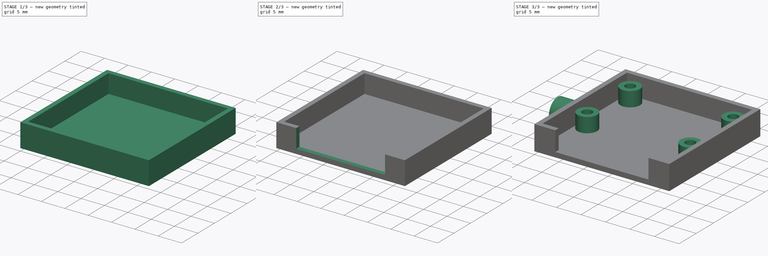
[diagram: build sequence overview — one tinted view per stage of 3, left to right]
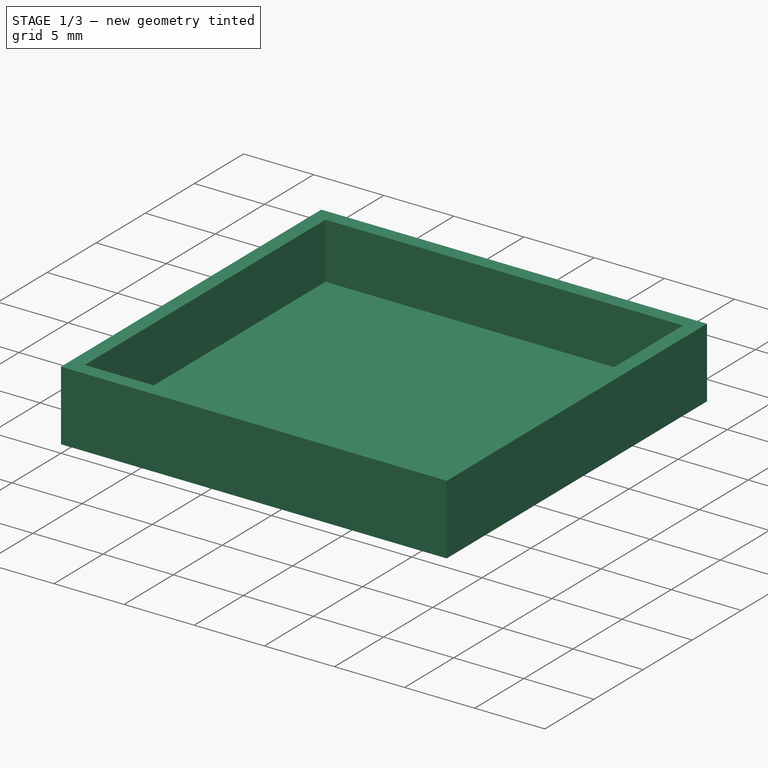
[diagram: stage 1 of 3 — iso view after this stage's code; geometry added in this stage tinted green]
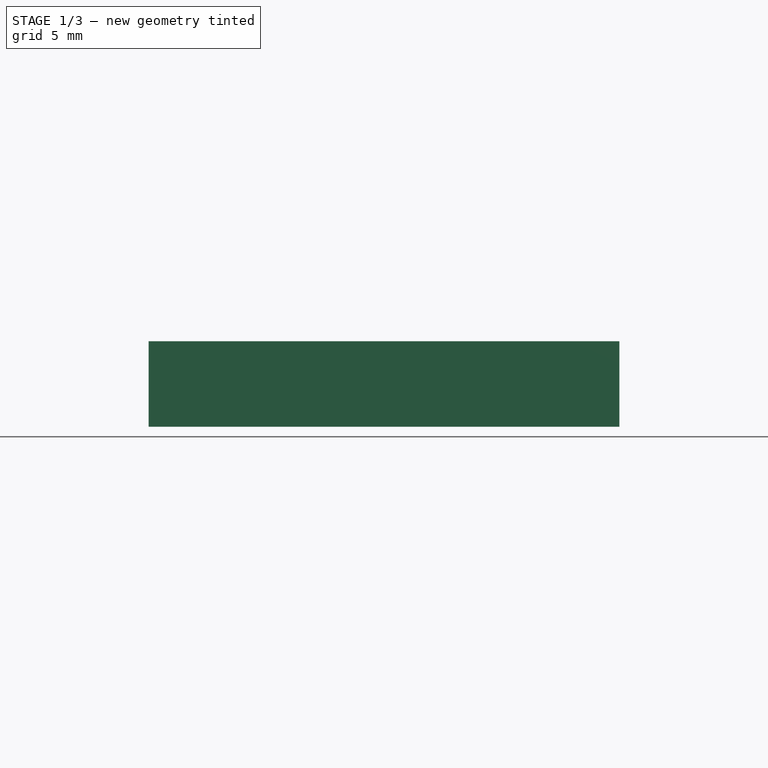
[diagram: stage 1 of 3 — front view after this stage's code; geometry added in this stage tinted green]
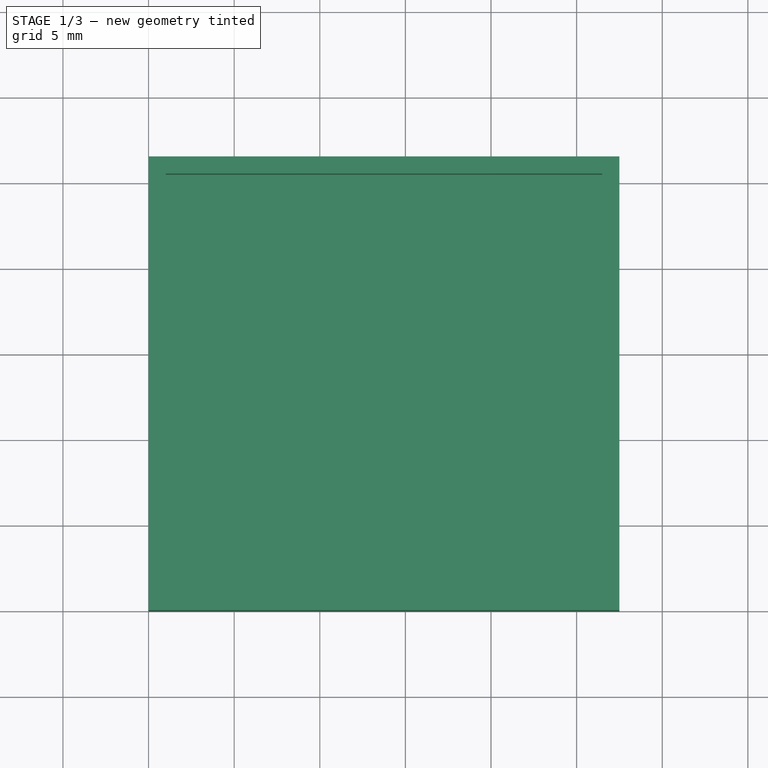
[diagram: stage 1 of 3 — top view after this stage's code; geometry added in this stage tinted green]
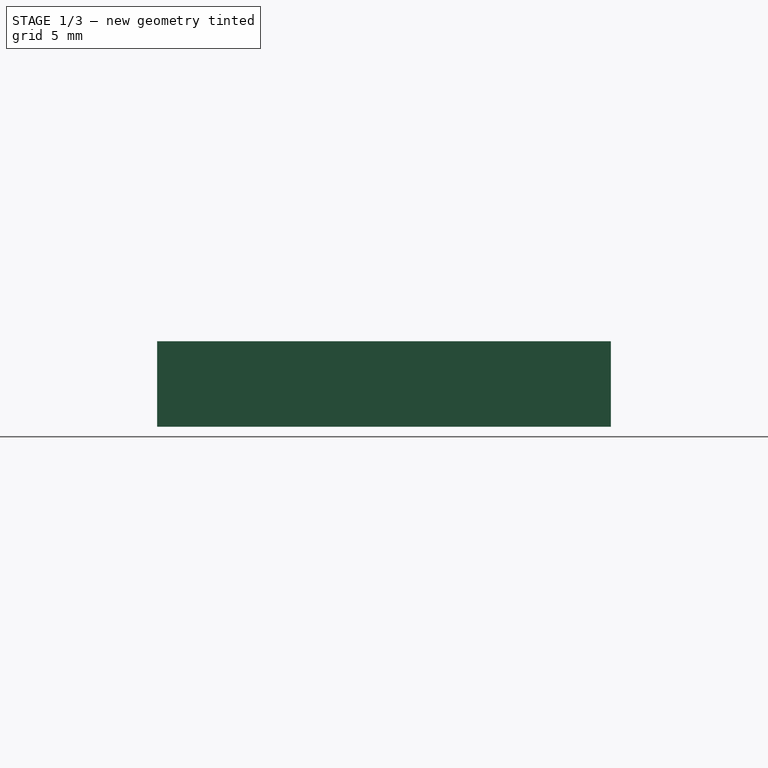
[diagram: stage 1 of 3 — right view after this stage's code; geometry added in this stage tinted green]
FCSTD DOCUMENT  (FreeCAD 0.16R6109 (Git))
Label: PiCamBack
License: All rights reserved
LicenseURL: http://en.wikipedia.org/wiki/All_rights_reserved
objects: Sketcher::SketchObject×5, PartDesign::Pad×3, PartDesign::Pocket×2
note: 15 computed .brp shape members not serialized (recipe doc carries the construction recipe); baked Part::Feature solids carry a one-line shape summary decoded from their .brp

FEATURE [Sketcher::SketchObject] Sketch
  sketch-geometry (4):
    g0: LineSegment StartX=0 StartY=0 StartZ=0 EndX=27.5 EndY=0 EndZ=0
    g1: LineSegment StartX=27.5 StartY=0 StartZ=0 EndX=27.5 EndY=26.5 EndZ=0
    g2: LineSegment StartX=27.5 StartY=26.5 StartZ=0 EndX=0 EndY=26.5 EndZ=0
    g3: LineSegment StartX=0 StartY=26.5 StartZ=0 EndX=0 EndY=0 EndZ=0
  constraints (11):
    c: Coincident(g0,g1)
    c: Coincident(g1,g2)
    c: Coincident(g2,g3)
    c: Coincident(g3,g0)
    c: Horizontal(g0)
    c: Horizontal(g2)
    c: Vertical(g1)
    c: Vertical(g3)
    c: Coincident(g0,g-1)
    c: Distance(g2) = 27.5
    c: Distance(g1) = 26.5
FEATURE [PartDesign::Pad] Pad  label="Outside"
  Length = 5
  Length2 = 100
  Sketch = -> Sketch
  Type = 0
FEATURE [Sketcher::SketchObject] Sketch001
  ExternalGeometry = -> [Pad]
  Placement = pos=(0,0,5) rot=(0,0,1;0rad)
  Support = -> Pad [Face6]
  sketch-geometry (4):
    g0: LineSegment StartX=1 StartY=25.5 StartZ=0 EndX=26.5 EndY=25.5 EndZ=0
    g1: LineSegment StartX=26.5 StartY=25.5 StartZ=0 EndX=26.5 EndY=1 EndZ=0
    g2: LineSegment StartX=26.5 StartY=1 StartZ=0 EndX=1 EndY=1 EndZ=0
    g3: LineSegment StartX=1 StartY=1 StartZ=0 EndX=1 EndY=25.5 EndZ=0
  constraints (12):
    c: Coincident(g0,g1)
    c: Coincident(g1,g2)
    c: Coincident(g2,g3)
    c: Coincident(g3,g0)
    c: Horizontal(g0)
    c: Horizontal(g2)
    c: Vertical(g1)
    c: Vertical(g3)
    c: DistanceX(g-1,g2) = 1
    c: DistanceY(g-1,g2) = 1
    c: DistanceY(g0,g-3) = 1
    c: DistanceX(g0,g-3) = 1
FEATURE [PartDesign::Pocket] Pocket  label="Inside"
  Length = 4
  Sketch = -> Sketch001
  Type = 0
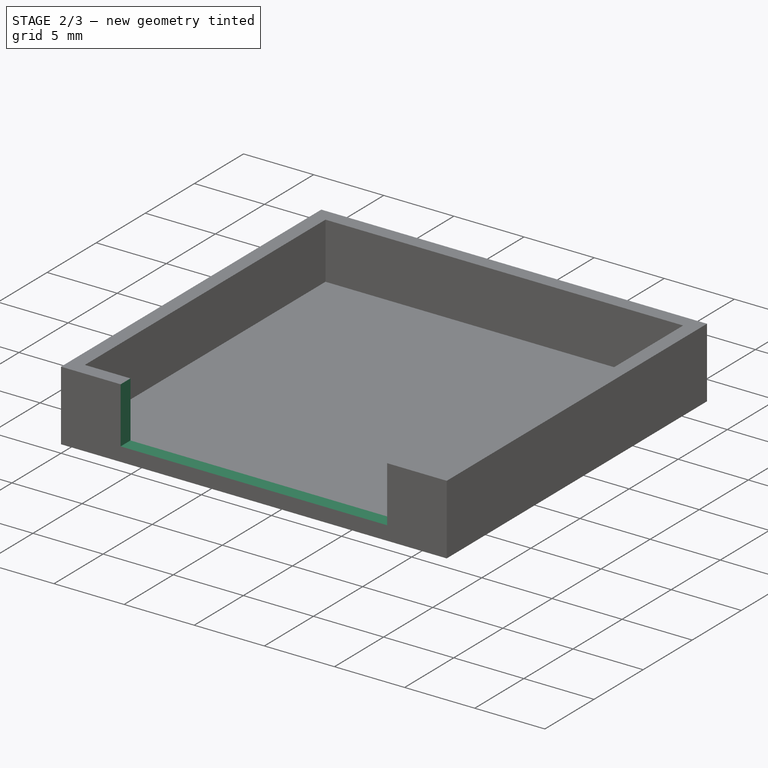
[diagram: stage 2 of 3 — iso view after this stage's code; geometry added in this stage tinted green]
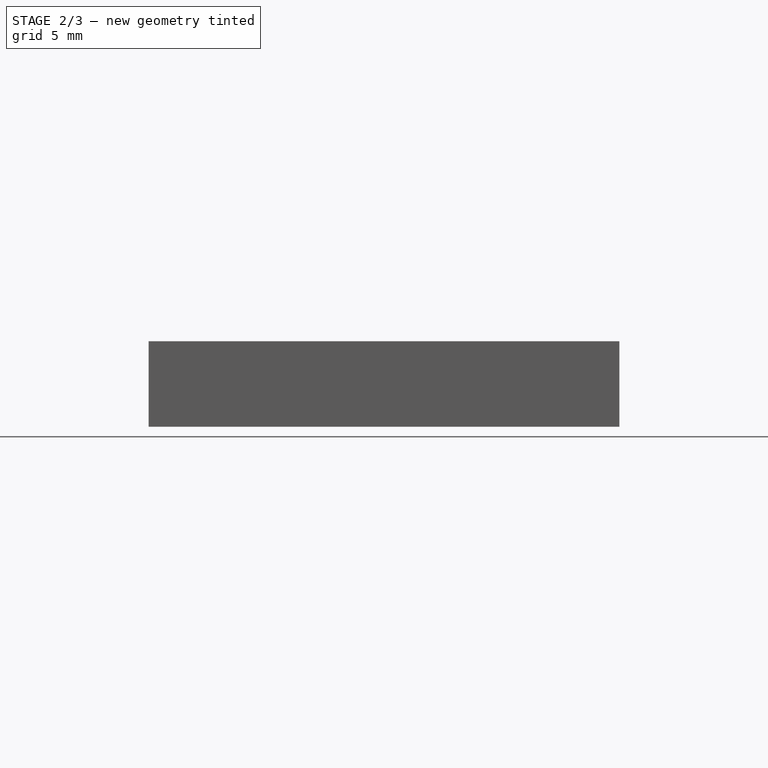
[diagram: stage 2 of 3 — front view after this stage's code; geometry added in this stage tinted green]
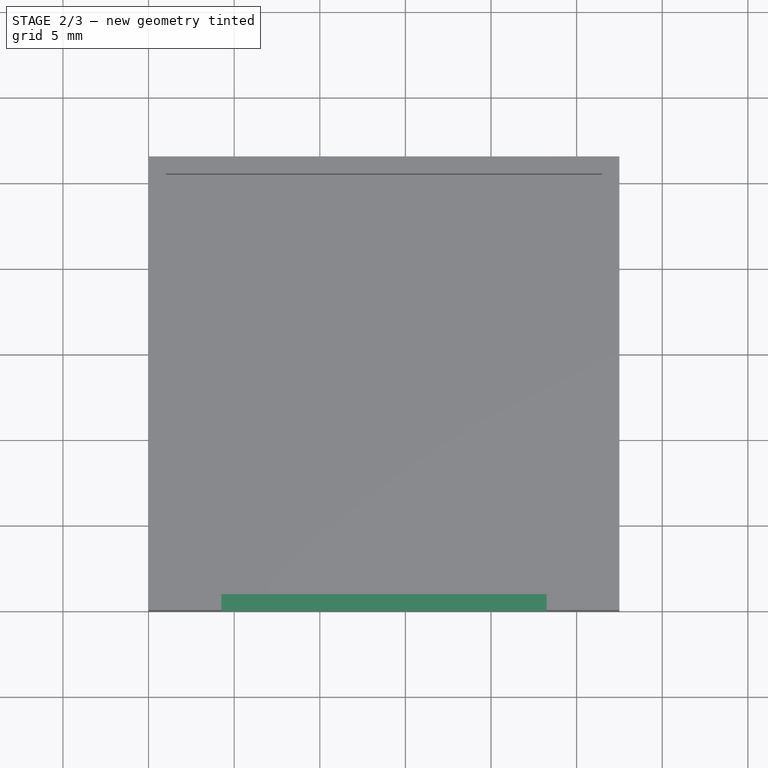
[diagram: stage 2 of 3 — top view after this stage's code; geometry added in this stage tinted green]
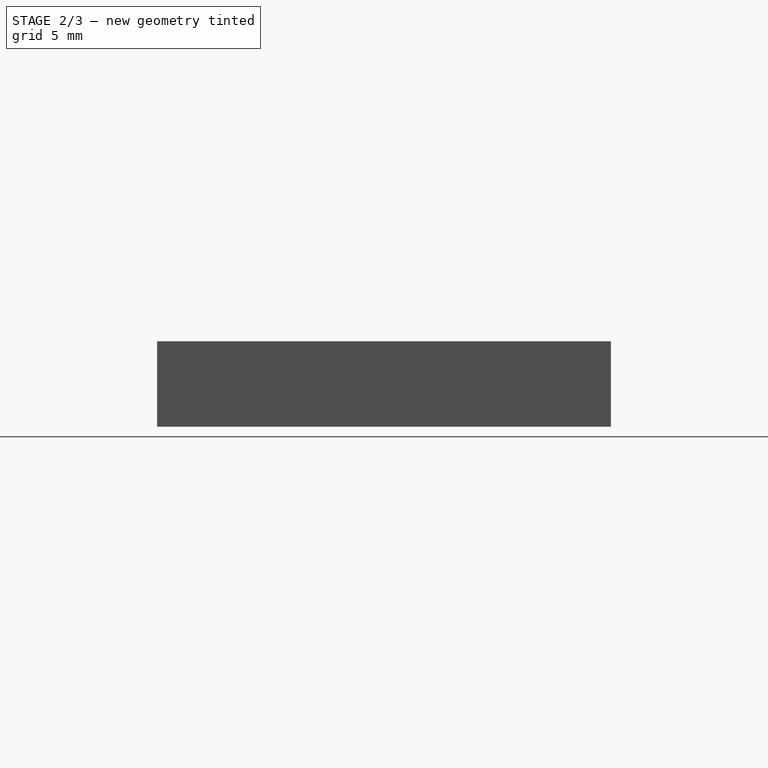
[diagram: stage 2 of 3 — right view after this stage's code; geometry added in this stage tinted green]
FEATURE [Sketcher::SketchObject] Sketch002
  ExternalGeometry = -> [Pocket]
  Placement = pos=(0,0,0) rot=(1,0,0;1.5708rad)
  Support = -> Pocket [Face1]
  sketch-geometry (5):
    g0: LineSegment [constr] StartX=13.75 StartY=7.29413 StartZ=0 EndX=13.75 EndY=-3.26497 EndZ=0
    g1: LineSegment StartX=4.25 StartY=5 StartZ=0 EndX=23.25 EndY=5 EndZ=0
    g2: LineSegment StartX=23.25 StartY=5 StartZ=0 EndX=23.25 EndY=1 EndZ=0
    g3: LineSegment StartX=23.25 StartY=1 StartZ=0 EndX=4.25 EndY=1 EndZ=0
    g4: LineSegment StartX=4.25 StartY=1 StartZ=0 EndX=4.25 EndY=5 EndZ=0
  constraints (17):
    c: Vertical(g0)
    c: Distance(g-1,g-3) = 27.5
    c: DistanceX(g-1,g0) = 13.75
    c: Coincident(g1,g2)
    c: Coincident(g2,g3)
    c: Coincident(g3,g4)
    c: Coincident(g4,g1)
    c: Horizontal(g1)
    c: Horizontal(g3)
    c: Vertical(g2)
    c: Vertical(g4)
    c: PointOnObject(g1,g-4)
    c: Distance(g2) = 4
    c: Symmetric(g2,g3,g0)
    c: Distance(g3) = 19
    c: Distance(g0) = 10.5591
    c: DistanceY(g-1,g0) = -3.26497
FEATURE [PartDesign::Pocket] Pocket001  label="CableCutOut"
  Length = 5
  Sketch = -> Sketch002
  Type = 2
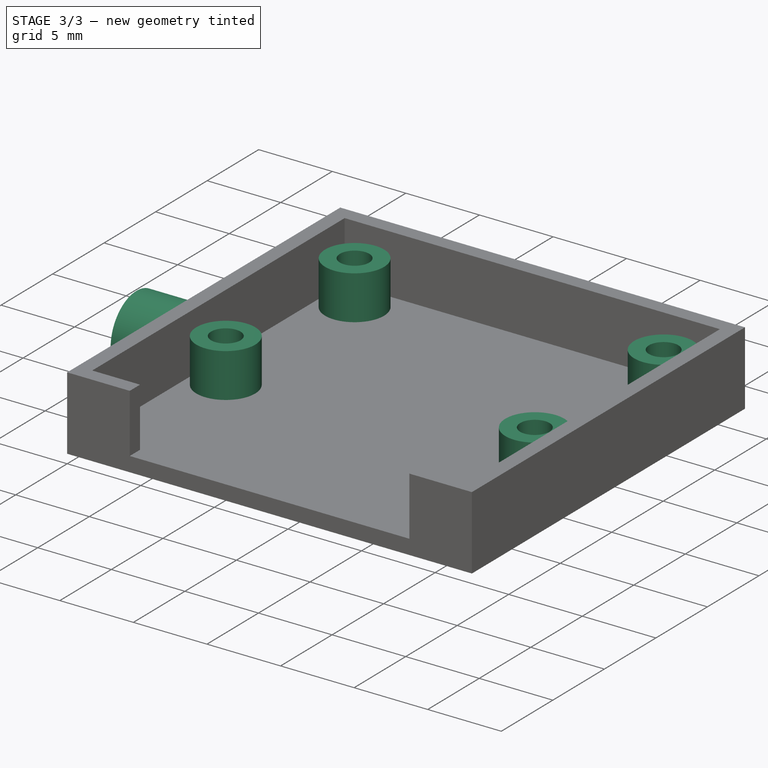
[diagram: stage 3 of 3 — iso view after this stage's code; geometry added in this stage tinted green]
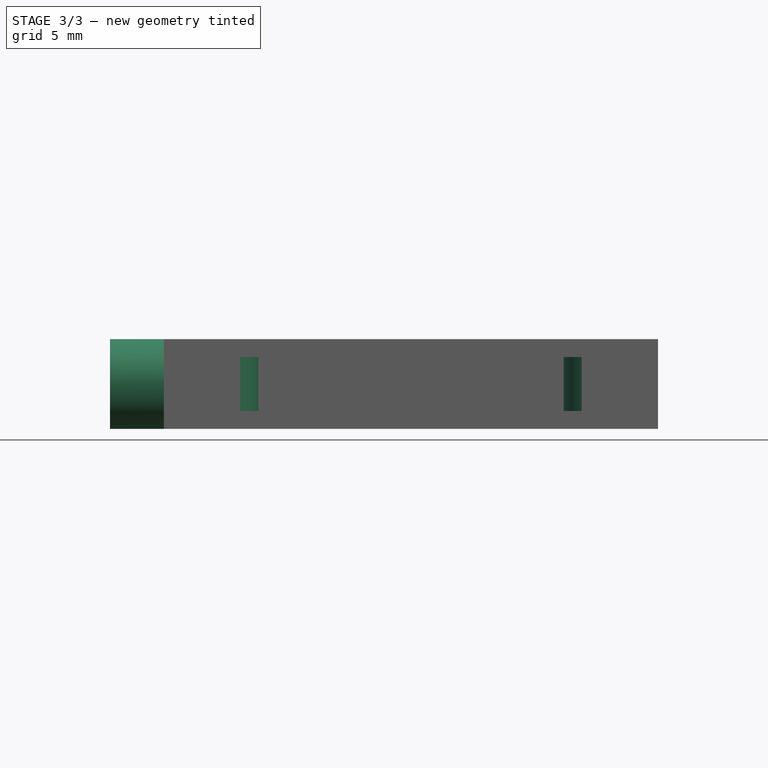
[diagram: stage 3 of 3 — front view after this stage's code; geometry added in this stage tinted green]
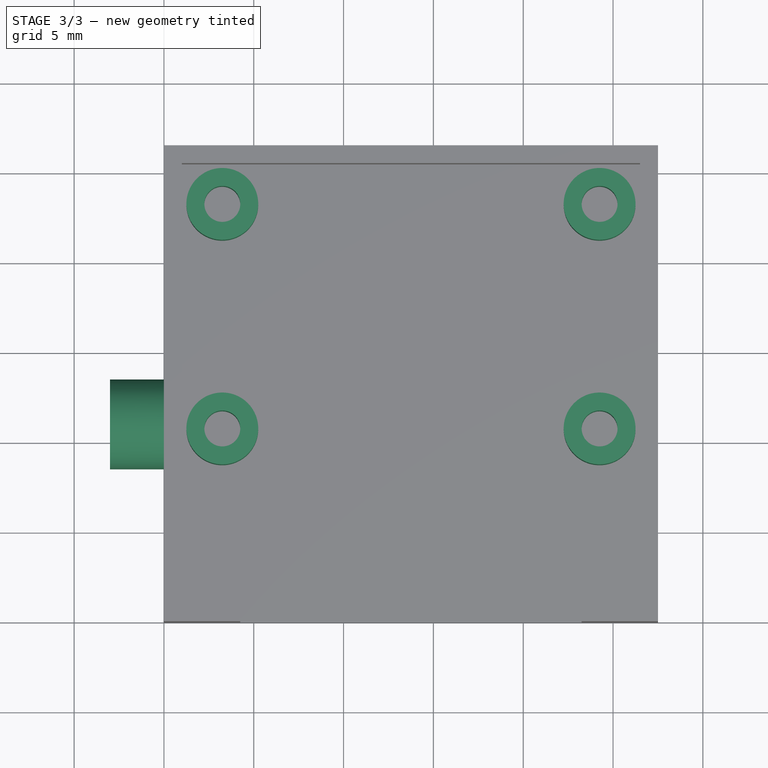
[diagram: stage 3 of 3 — top view after this stage's code; geometry added in this stage tinted green]
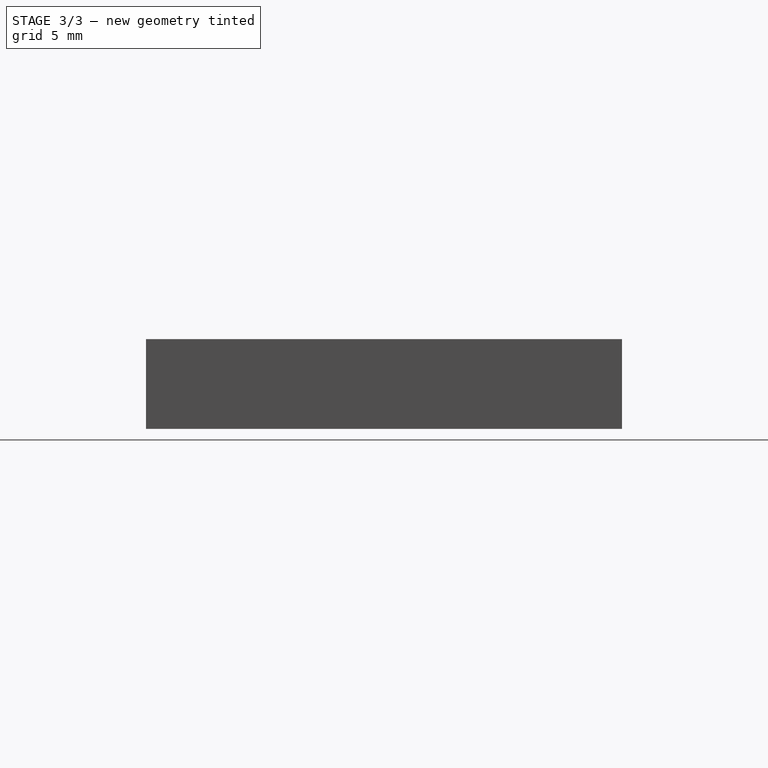
[diagram: stage 3 of 3 — right view after this stage's code; geometry added in this stage tinted green]
FEATURE [Sketcher::SketchObject] Sketch003
  ExternalGeometry = -> [Pocket001]
  Placement = pos=(0,0,1) rot=(0,0,1;0rad)
  Support = -> Pocket001 [Face15]
  sketch-geometry (13):
    g0: LineSegment [constr] StartX=3.25 StartY=23.25 StartZ=0 EndX=24.25 EndY=23.25 EndZ=0
    g1: LineSegment [constr] StartX=24.25 StartY=23.25 StartZ=0 EndX=24.25 EndY=10.75 EndZ=0
    g2: LineSegment [constr] StartX=24.25 StartY=10.75 StartZ=0 EndX=3.25 EndY=10.75 EndZ=0
    g3: LineSegment [constr] StartX=3.25 StartY=10.75 StartZ=0 EndX=3.25 EndY=23.25 EndZ=0
    g4: LineSegment [constr] StartX=13.75 StartY=27.4676 StartZ=0 EndX=13.75 EndY=-2.83498 EndZ=0
    g5: Circle CenterX=3.25 CenterY=23.25 CenterZ=0 NormalX=0 NormalY=0 NormalZ=1 Radius=1
    g6: Circle CenterX=24.25 CenterY=23.25 CenterZ=0 NormalX=0 NormalY=0 NormalZ=1 Radius=1
    g7: Circle CenterX=24.25 CenterY=10.75 CenterZ=0 NormalX=0 NormalY=0 NormalZ=1 Radius=1
    g8: Circle CenterX=3.25 CenterY=10.75 CenterZ=0 NormalX=0 NormalY=0 NormalZ=1 Radius=1
    g9: Circle CenterX=24.25 CenterY=10.75 CenterZ=0 NormalX=0 NormalY=0 NormalZ=1 Radius=2
    g10: Circle CenterX=3.25 CenterY=10.75 CenterZ=0 NormalX=0 NormalY=0 NormalZ=1 Radius=2
    g11: Circle CenterX=3.25 CenterY=23.25 CenterZ=0 NormalX=0 NormalY=0 NormalZ=1 Radius=2
    g12: Circle CenterX=24.25 CenterY=23.25 CenterZ=0 NormalX=0 NormalY=0 NormalZ=1 Radius=2
  constraints (34):
    c: Coincident(g0,g1)
    c: Coincident(g1,g2)
    c: Coincident(g2,g3)
    c: Coincident(g3,g0)
    c: Horizontal(g0)
    c: Horizontal(g2)
    c: Vertical(g1)
    c: Vertical(g3)
    c: Distance(g0) = 21
    c: Distance(g3) = 12.5
    c: Vertical(g4)
    c: Distance(g-3) = 27.5
    c: DistanceX(g-1,g4) = 13.75
    c: Distance(g4) = 30.3026
    c: DistanceY(g-1,g4) = -2.83498
    c: Symmetric(g0,g0,g4)
    c: Distance(g-1,g-3) = 26.5
    c: DistanceY(g0,g-3) = 3.25
    c: Coincident(g5,g0)
    c: Coincident(g6,g0)
    c: Coincident(g7,g1)
    c: Coincident(g8,g2)
    c: Equal(g7,g8)
    c: Equal(g8,g5)
    c: Equal(g5,g6)
    c: Radius(g7) = 1
    c: Coincident(g9,g1)
    c: Coincident(g10,g2)
    c: Coincident(g11,g0)
    c: Coincident(g12,g0)
    c: Equal(g12,g9)
    c: Equal(g9,g10)
    c: Equal(g10,g11)
    c: Radius(g9) = 2
FEATURE [PartDesign::Pad] Pad001  label="Standoff"
  Length = 3
  Length2 = 100
  Sketch = -> Sketch003
  Type = 0
FEATURE [Sketcher::SketchObject] Sketch004
  ExternalGeometry = -> [Pad001]
  Placement = pos=(0,0,0) rot=(0.57735,-0.57735,-0.57735;2.0944rad)
  Support = -> Pad001 [Face8]
  sketch-geometry (3):
    g0: LineSegment [constr] StartX=-11 StartY=7.3662 StartZ=0 EndX=-11 EndY=-2.38977 EndZ=0
    g1: Circle CenterX=-11 CenterY=2.5 CenterZ=0 NormalX=0 NormalY=0 NormalZ=1 Radius=1.85
    g2: Circle CenterX=-11 CenterY=2.5 CenterZ=0 NormalX=0 NormalY=0 NormalZ=1 Radius=2.5
  constraints (11):
    c: Vertical(g0)
    c: Distance(g-3) = 26.5
    c: DistanceX(g-1,g0) = -11
    c: Distance(g-1,g-4) = 5
    c: Distance(g0) = 9.75597
    c: DistanceY(g-1,g0) = -2.38977
    c: PointOnObject(g1,g0)
    c: DistanceY(g-1,g1) = 2.5
    c: Radius(g1) = 1.85
    c: Coincident(g2,g1)
    c: Radius(g2) = 2.5
FEATURE [PartDesign::Pad] Pad002  label="ServoMount"
  Length = 3
  Length2 = 100
  Sketch = -> Sketch004
  Type = 0
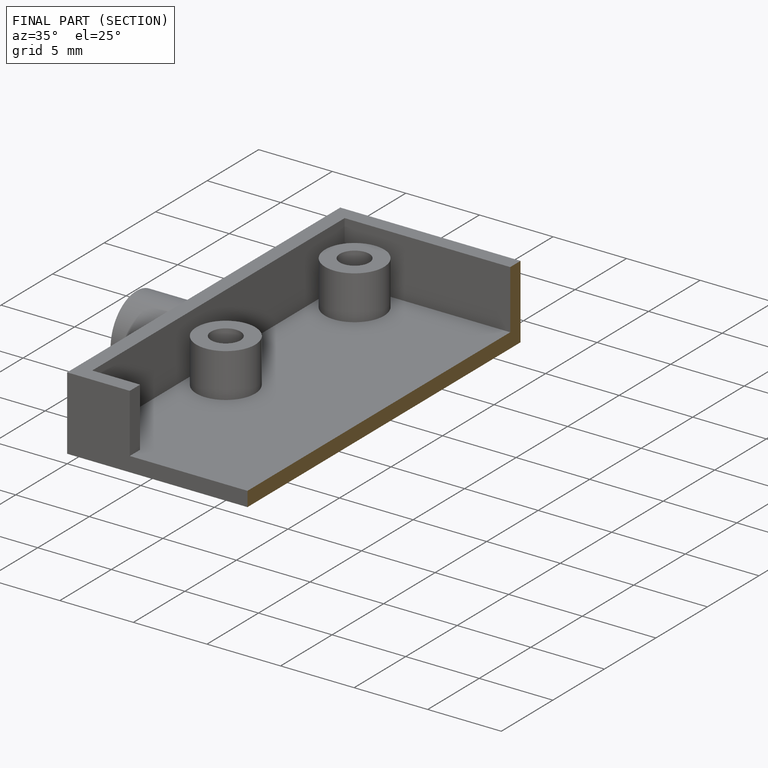
[diagram: finished part — half-section view (interior)]
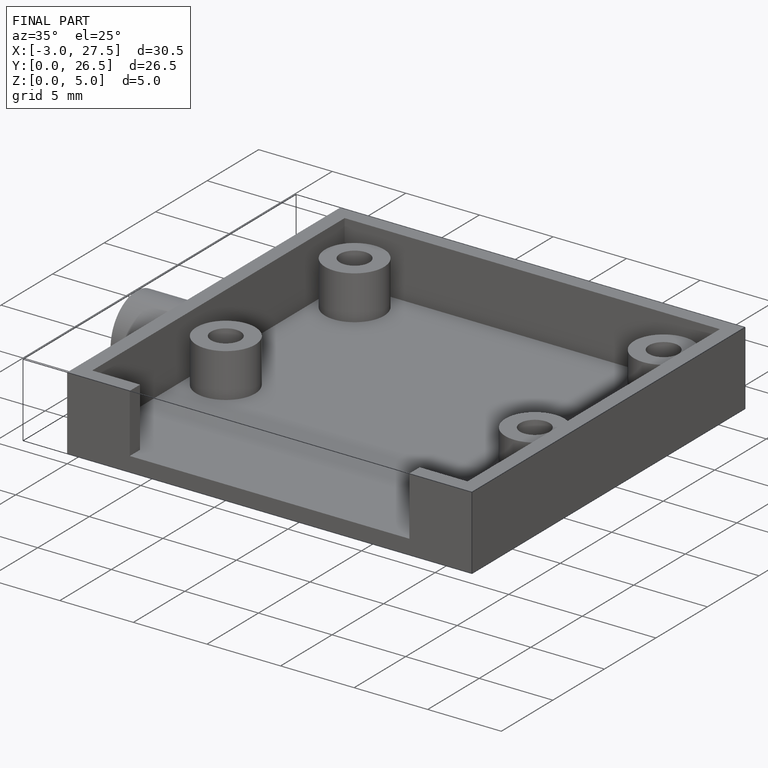
[diagram: finished part — iso view with bounding-box wireframe]
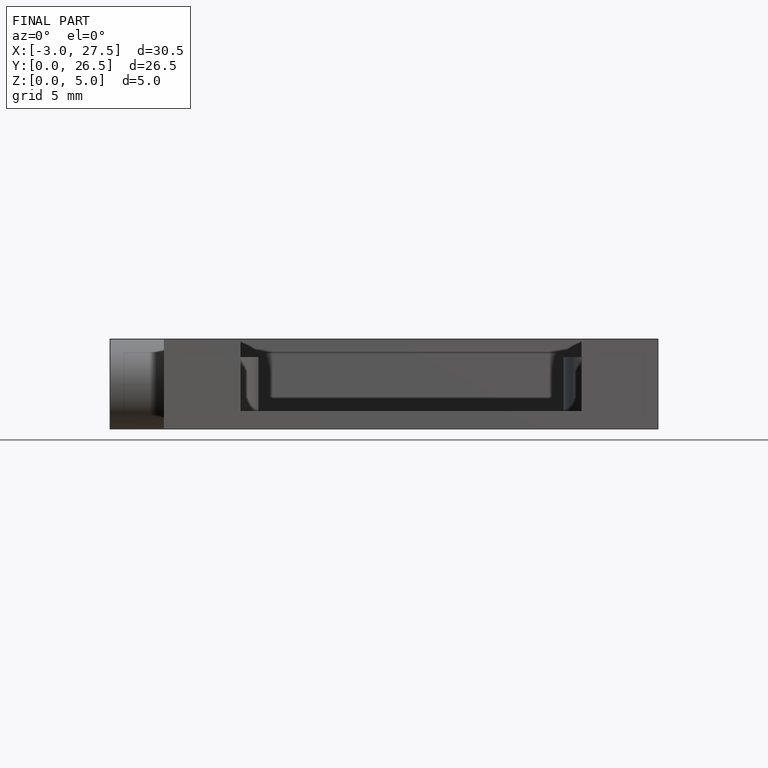
[diagram: finished part — front view with bounding-box wireframe]
